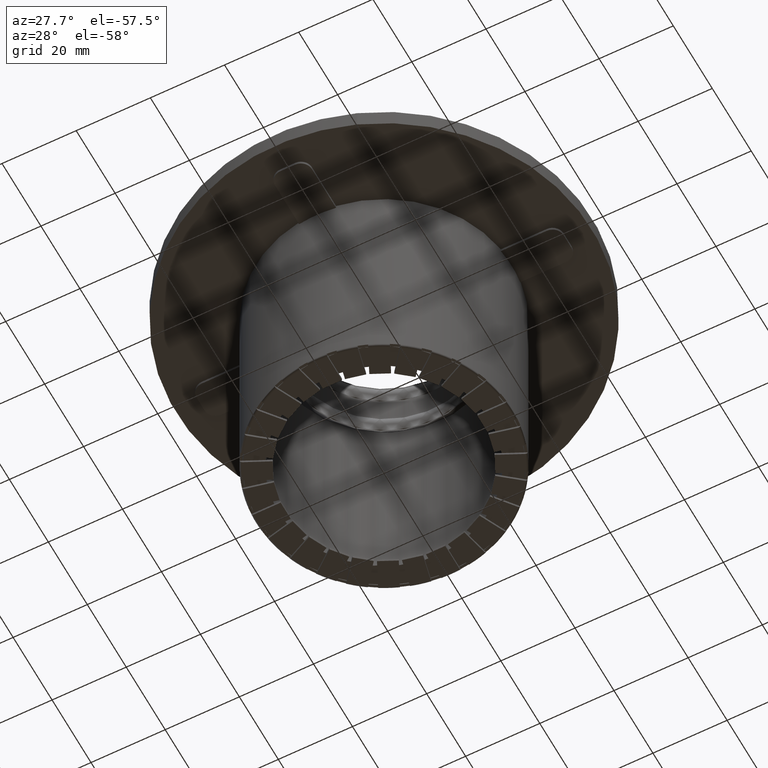
[diagram: clean part render]
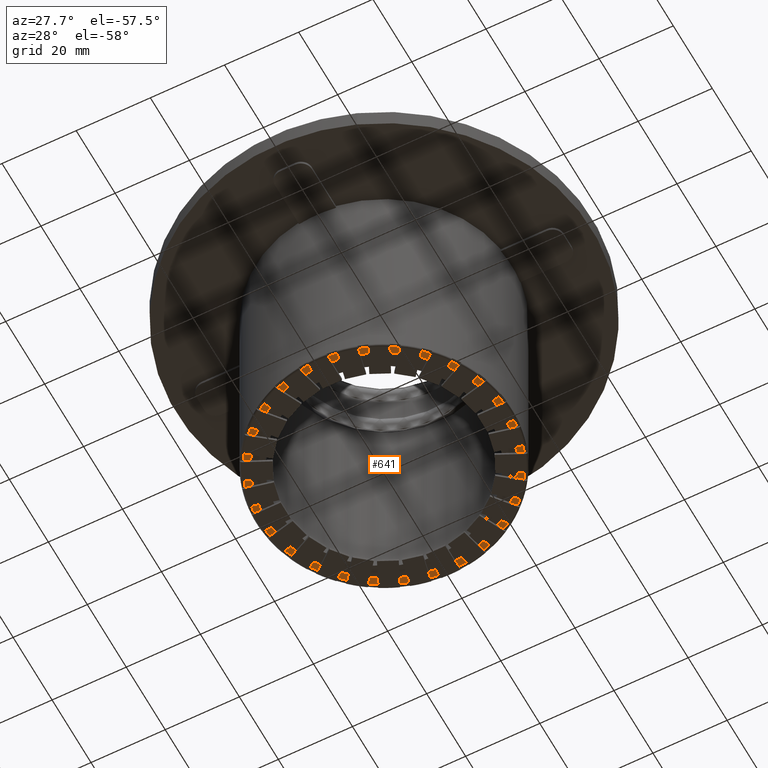
[diagram: same view with one face highlighted and labeled with its STEP entity id]
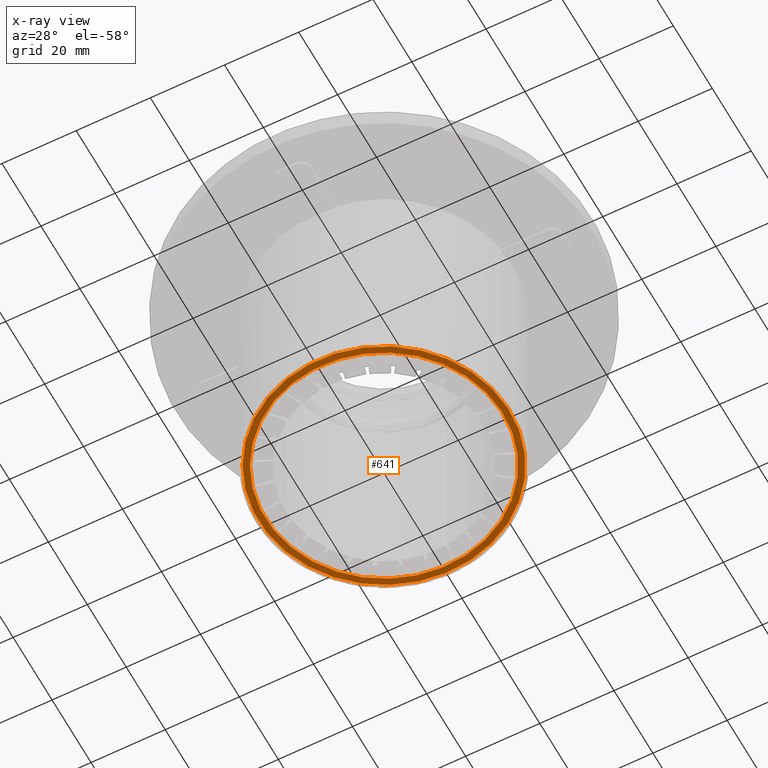
[diagram: x-ray of the same camera — body ghosted, the highlighted face saturated]
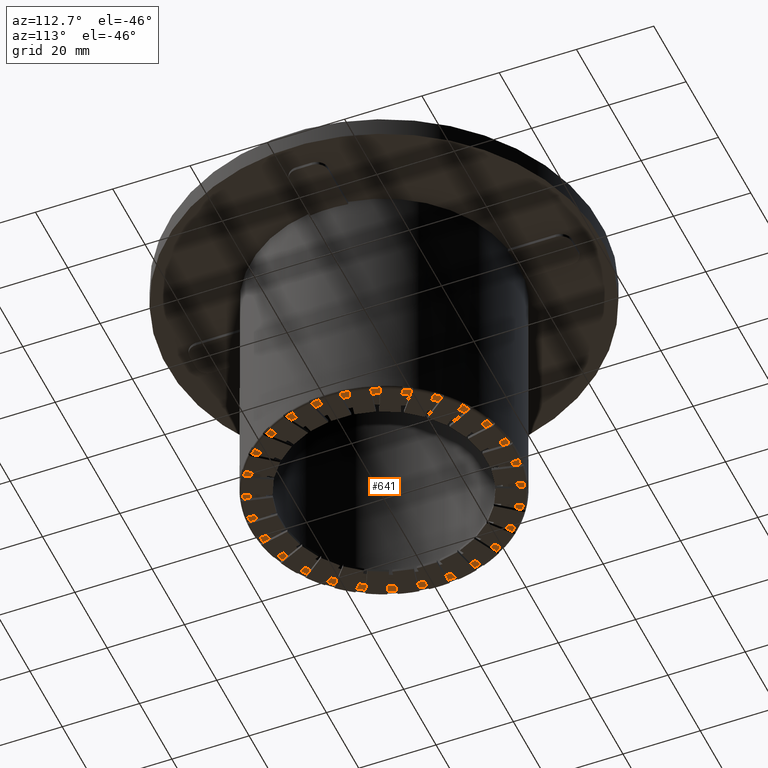
[diagram: same view with one face highlighted and labeled with its STEP entity id]
A machine part, auxiliary view. The second image highlights one B-rep face of the part: STEP entity #641.
The next image is the same camera in x-ray: the body ghosted, the highlighted face saturated — about 0% of this face is hidden behind the body in this view.
A second angle (auxiliary view) of the same face is appended — the face is thin or edge-on in the first view.
In plain terms, the highlighted planar face has unit normal (0, 0, -1).
Its self-contained STEP definition (entity closure, byte-faithful):
#575=CARTESIAN_POINT('',(31.994287018881465,-0.604647131336604,-4.662897E-015));
#576=VERTEX_POINT('',#575);
#577=CARTESIAN_POINT('',(8.881784E-015,-1.395672E-016,-4.440892E-015));
#578=DIRECTION('',(6.936417E-018,-1.310885E-019,1.0));
#579=DIRECTION('',(-0.999821469340046,0.018895222854269,6.937655E-018));
#580=AXIS2_PLACEMENT_3D('',#577,#578,#579);
#581=CIRCLE('',#580,31.999999999999996);
#582=EDGE_CURVE('',#576,#576,#581,.T.);
#606=CARTESIAN_POINT('',(33.793965663693548,-0.638658532474288,-4.675385E-015));
#607=VERTEX_POINT('',#606);
#608=CARTESIAN_POINT('',(8.881784E-015,-1.395672E-016,-4.440892E-015));
#609=DIRECTION('',(-6.936417E-018,1.310885E-019,-1.0));
#610=DIRECTION('',(-0.999821469340045,0.018895222854269,6.937655E-018));
#611=AXIS2_PLACEMENT_3D('',#608,#609,#610);
#612=CIRCLE('',#611,33.799999999999997);
#613=EDGE_CURVE('',#607,#607,#612,.T.);
#630=CARTESIAN_POINT('',(8.881784E-015,-1.395672E-016,-4.440892E-015));
#631=DIRECTION('',(0.0,0.0,-1.0));
#632=DIRECTION('',(-0.999821469340046,0.018895222854269,0.0));
#633=AXIS2_PLACEMENT_3D('',#630,#631,#632);
#634=PLANE('',#633);
#635=ORIENTED_EDGE('',*,*,#613,.T.);
#636=EDGE_LOOP('',(#635));
#637=FACE_OUTER_BOUND('',#636,.T.);
#638=ORIENTED_EDGE('',*,*,#582,.T.);
#639=EDGE_LOOP('',(#638));
#640=FACE_BOUND('',#639,.T.);
#641=ADVANCED_FACE('',(#637,#640),#634,.T.);